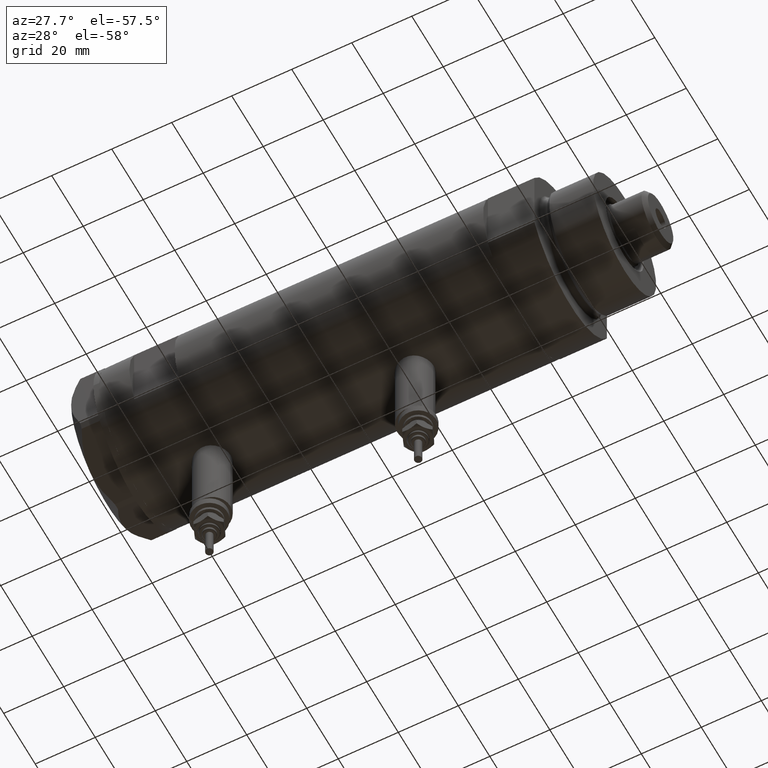
[diagram: clean part render]
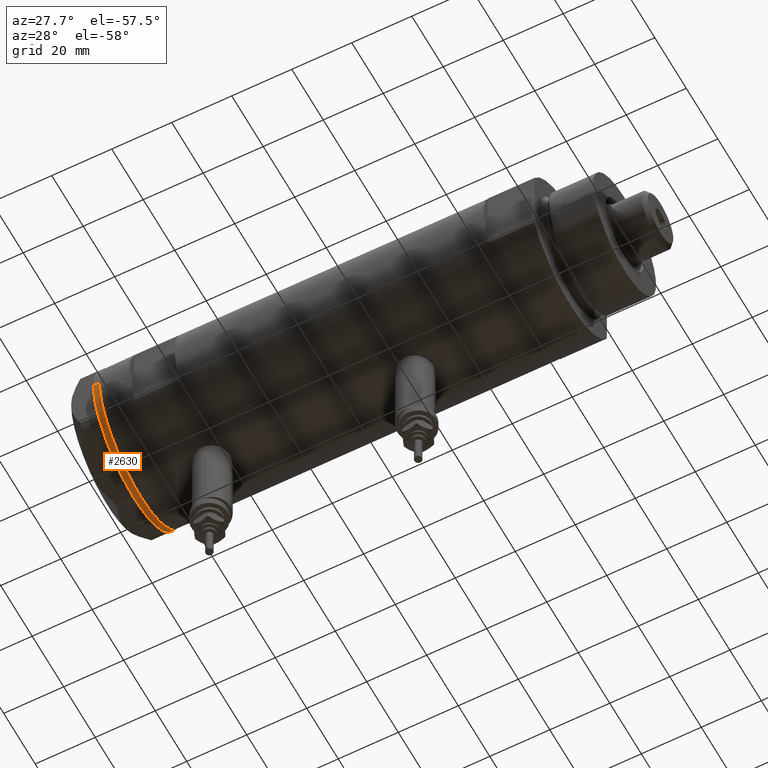
[diagram: same view with one face highlighted and labeled with its STEP entity id]
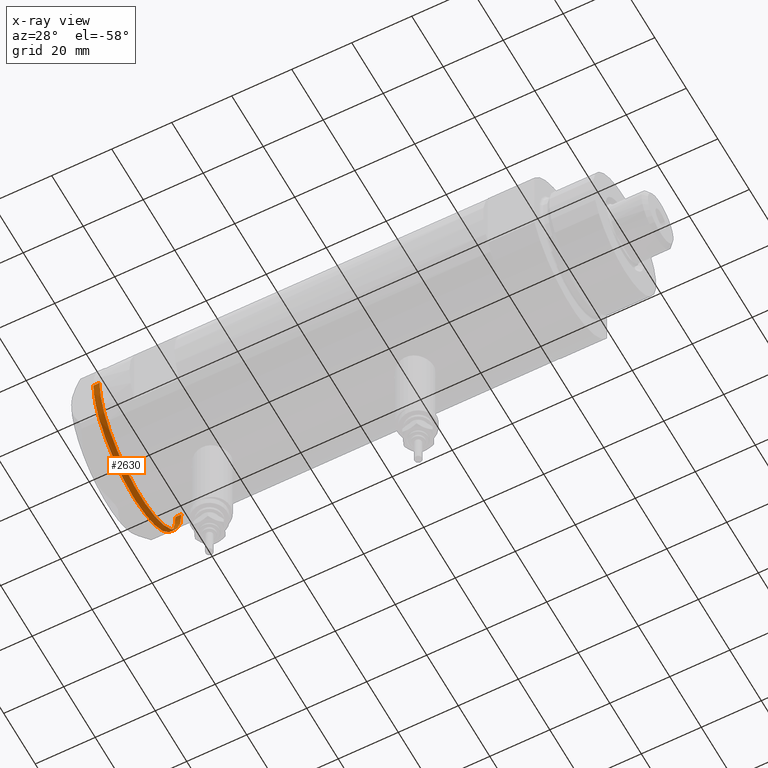
[diagram: x-ray of the same camera — body ghosted, the highlighted face saturated]
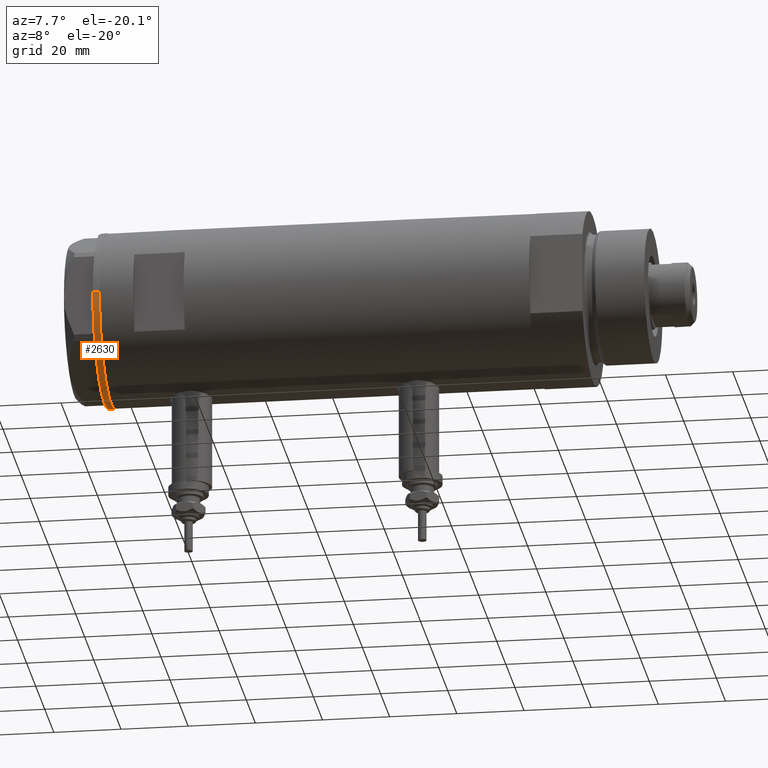
[diagram: same view with one face highlighted and labeled with its STEP entity id]
A machine part, auxiliary view. The second image highlights one B-rep face of the part: STEP entity #2630.
The next image is the same camera in x-ray: the body ghosted, the highlighted face saturated — about 2% of this face is hidden behind the body in this view.
A second angle (auxiliary view) of the same face is appended — the face is thin or edge-on in the first view.
In plain terms, the highlighted cylindrical surface (partial cylindrical patch) has radius 26 mm, axis along (-1, -0, 0).
Its self-contained STEP definition (entity closure, byte-faithful):
#36 = CARTESIAN_POINT ( 'NONE',  ( 0.000000000000000000, 0.000000000000000000, 0.000000000000000000 ) ) ;
#39 = CIRCLE ( 'NONE', #3486, 26.00000000000000355 ) ;
#48 = CARTESIAN_POINT ( 'NONE',  ( 26.00000000000000355, 0.000000000000000000, -2.000000000000000000 ) ) ;
#108 = CARTESIAN_POINT ( 'NONE',  ( 26.00000000000000355, 0.000000000000000000, -2.000000000000000000 ) ) ;
#175 = AXIS2_PLACEMENT_3D ( 'NONE', #2618, #3533, #5469 ) ;
#189 = CIRCLE ( 'NONE', #1226, 26.00000000000000355 ) ;
#268 = CARTESIAN_POINT ( 'NONE',  ( -22.00000000000008171, 13.85640646055089498, 0.000000000000000000 ) ) ;
#282 = CIRCLE ( 'NONE', #175, 26.00000000000000355 ) ;
#363 = DIRECTION ( 'NONE',  ( -1.000000000000000000, 0.000000000000000000, 0.000000000000000000 ) ) ;
#424 = AXIS2_PLACEMENT_3D ( 'NONE', #2401, #2432, #3331 ) ;
#428 = CARTESIAN_POINT ( 'NONE',  ( -22.35837924876937066, 13.27037593168329543, 0.000000000000000000 ) ) ;
#447 = CARTESIAN_POINT ( 'NONE',  ( 0.3132930502238189252, 25.99811238272274139, 0.000000000000000000 ) ) ;
#511 = DIRECTION ( 'NONE',  ( -1.000000000000000000, 0.000000000000000000, 0.000000000000000000 ) ) ;
#567 = CARTESIAN_POINT ( 'NONE',  ( 0.000000000000000000, 0.000000000000000000, 0.000000000000000000 ) ) ;
#591 = CARTESIAN_POINT ( 'NONE',  ( 22.99999999999982592, 12.12435565298247653, 0.000000000000000000 ) ) ;
#654 = CARTESIAN_POINT ( 'NONE',  ( -26.00000000000000355, 3.184081677783118585E-15, -2.000000000000000000 ) ) ;
#700 = EDGE_CURVE ( 'NONE', #2762, #4670, #2290, .T. ) ;
#712 = VERTEX_POINT ( 'NONE', #3726 ) ;
#745 = CIRCLE ( 'NONE', #3688, 26.00000000000000355 ) ;
#765 = VERTEX_POINT ( 'NONE', #6143 ) ;
#808 = EDGE_CURVE ( 'NONE', #4604, #1241, #282, .T. ) ;
#893 = CARTESIAN_POINT ( 'NONE',  ( 0.000000000000000000, 0.000000000000000000, 0.000000000000000000 ) ) ;
#938 = CARTESIAN_POINT ( 'NONE',  ( 0.000000000000000000, 0.000000000000000000, 0.000000000000000000 ) ) ;
#963 = DIRECTION ( 'NONE',  ( 0.000000000000000000, 0.000000000000000000, -1.000000000000000000 ) ) ;
#1070 = AXIS2_PLACEMENT_3D ( 'NONE', #1102, #1947, #3501 ) ;
#1082 = EDGE_CURVE ( 'NONE', #2663, #5357, #4503, .T. ) ;
#1102 = CARTESIAN_POINT ( 'NONE',  ( 0.000000000000000000, 0.000000000000000000, 0.000000000000000000 ) ) ;
#1156 = VERTEX_POINT ( 'NONE', #1581 ) ;
#1226 = AXIS2_PLACEMENT_3D ( 'NONE', #1715, #4054, #6032 ) ;
#1237 = DIRECTION ( 'NONE',  ( 0.000000000000000000, 0.000000000000000000, -1.000000000000000000 ) ) ;
#1241 = VERTEX_POINT ( 'NONE', #3571 ) ;
#1370 = EDGE_CURVE ( 'NONE', #1241, #712, #3203, .T. ) ;
#1387 = CARTESIAN_POINT ( 'NONE',  ( 0.1044411259763403238, 26.00062917530480888, 0.000000000000000000 ) ) ;
#1481 = EDGE_CURVE ( 'NONE', #765, #2762, #3156, .T. ) ;
#1501 = DIRECTION ( 'NONE',  ( -1.000000000000000000, 0.000000000000000000, 0.000000000000000000 ) ) ;
#1572 = AXIS2_PLACEMENT_3D ( 'NONE', #5619, #1237, #5120 ) ;
#1581 = CARTESIAN_POINT ( 'NONE',  ( -26.00000000000000355, 3.184081677783118585E-15, 0.000000000000000000 ) ) ;
#1615 = CARTESIAN_POINT ( 'NONE',  ( -22.56942594318084616, 12.90986591935725158, 0.000000000000000000 ) ) ;
#1633 = ORIENTED_EDGE ( 'NONE', *, *, #5963, .T. ) ;
#1648 = DIRECTION ( 'NONE',  ( -0.000000000000000000, -0.000000000000000000, 1.000000000000000000 ) ) ;
#1665 = EDGE_CURVE ( 'NONE', #2877, #2663, #189, .T. ) ;
#1684 = DIRECTION ( 'NONE',  ( -1.000000000000000000, 0.000000000000000000, 0.000000000000000000 ) ) ;
#1715 = CARTESIAN_POINT ( 'NONE',  ( 0.000000000000000000, 0.000000000000000000, -2.000000000000000000 ) ) ;
#1718 = CARTESIAN_POINT ( 'NONE',  ( -22.99999999999999289, 12.12435565298215856, 0.000000000000000000 ) ) ;
#1790 = CARTESIAN_POINT ( 'NONE',  ( 0.9999999999999297229, 25.98076211353316722, 0.000000000000000000 ) ) ;
#1934 = DIRECTION ( 'NONE',  ( -1.000000000000000000, 0.000000000000000000, 0.000000000000000000 ) ) ;
#1947 = DIRECTION ( 'NONE',  ( 0.000000000000000000, 0.000000000000000000, -1.000000000000000000 ) ) ;
#2078 = CIRCLE ( 'NONE', #3091, 26.00000000000000355 ) ;
#2211 = ORIENTED_EDGE ( 'NONE', *, *, #4255, .T. ) ;
#2232 = CARTESIAN_POINT ( 'NONE',  ( 22.67167229899213510, 12.72773645103923990, 0.000000000000000000 ) ) ;
#2234 = CARTESIAN_POINT ( 'NONE',  ( 0.000000000000000000, 0.000000000000000000, 0.000000000000000000 ) ) ;
#2290 = B_SPLINE_CURVE_WITH_KNOTS ( 'NONE', 3,
 ( #5206, #4232, #5910, #5832 ),
 .UNSPECIFIED., .F., .F.,
 ( 4, 4 ),
 ( 0.000000000000000000, 1.000000000000000000 ),
 .UNSPECIFIED. ) ;
#2345 = EDGE_CURVE ( 'NONE', #3674, #4409, #3980, .T. ) ;
#2355 = CARTESIAN_POINT ( 'NONE',  ( 22.35837924876908289, 13.27037593168378216, 0.000000000000000000 ) ) ;
#2401 = CARTESIAN_POINT ( 'NONE',  ( 0.000000000000000000, 0.000000000000000000, -2.000000000000000000 ) ) ;
#2432 = DIRECTION ( 'NONE',  ( -0.000000000000000000, -0.000000000000000000, 1.000000000000000000 ) ) ;
#2510 = DIRECTION ( 'NONE',  ( 0.000000000000000000, 0.000000000000000000, -1.000000000000000000 ) ) ;
#2521 = VECTOR ( 'NONE', #1648, 1000.000000000000000 ) ;
#2591 = DIRECTION ( 'NONE',  ( -0.000000000000000000, -0.000000000000000000, 1.000000000000000000 ) ) ;
#2618 = CARTESIAN_POINT ( 'NONE',  ( 0.000000000000000000, 0.000000000000000000, 0.000000000000000000 ) ) ;
#2630 = ADVANCED_FACE ( 'NONE', ( #5830 ), #6248, .T. ) ;
#2631 = CARTESIAN_POINT ( 'NONE',  ( 26.00000000000000355, 0.000000000000000000, 0.000000000000000000 ) ) ;
#2663 = VERTEX_POINT ( 'NONE', #48 ) ;
#2671 = AXIS2_PLACEMENT_3D ( 'NONE', #4509, #4952, #1684 ) ;
#2696 = DIRECTION ( 'NONE',  ( 0.000000000000000000, 0.000000000000000000, -1.000000000000000000 ) ) ;
#2700 = B_SPLINE_CURVE_WITH_KNOTS ( 'NONE', 3,
 ( #4588, #1615, #5112, #4626 ),
 .UNSPECIFIED., .F., .F.,
 ( 4, 4 ),
 ( 0.000000000000000000, 1.000000000000000000 ),
 .UNSPECIFIED. ) ;
#2762 = VERTEX_POINT ( 'NONE', #2355 ) ;
#2877 = VERTEX_POINT ( 'NONE', #6325 ) ;
#2913 = CARTESIAN_POINT ( 'NONE',  ( -0.1044411259765276462, 26.00062917530480888, 0.000000000000000000 ) ) ;
#2914 = VERTEX_POINT ( 'NONE', #428 ) ;
#2918 = EDGE_CURVE ( 'NONE', #2914, #6017, #745, .T. ) ;
#2997 = CIRCLE ( 'NONE', #1572, 26.00000000000000355 ) ;
#3091 = AXIS2_PLACEMENT_3D ( 'NONE', #938, #2696, #5763 ) ;
#3156 = CIRCLE ( 'NONE', #5197, 26.00000000000000355 ) ;
#3182 = EDGE_CURVE ( 'NONE', #1156, #3674, #39, .T. ) ;
#3203 = B_SPLINE_CURVE_WITH_KNOTS ( 'NONE', 3,
 ( #4749, #2913, #1387, #447 ),
 .UNSPECIFIED., .F., .F.,
 ( 4, 4 ),
 ( 0.000000000000000000, 1.000000000000000000 ),
 .UNSPECIFIED. ) ;
#3241 = CARTESIAN_POINT ( 'NONE',  ( -22.67167229899207115, 12.72773645103935003, 0.000000000000000000 ) ) ;
#3331 = DIRECTION ( 'NONE',  ( 1.000000000000000000, 0.000000000000000000, 0.000000000000000000 ) ) ;
#3342 = EDGE_CURVE ( 'NONE', #4409, #2914, #2700, .T. ) ;
#3399 = CIRCLE ( 'NONE', #4407, 26.00000000000000355 ) ;
#3486 = AXIS2_PLACEMENT_3D ( 'NONE', #4260, #963, #6234 ) ;
#3501 = DIRECTION ( 'NONE',  ( -1.000000000000000000, 0.000000000000000000, 0.000000000000000000 ) ) ;
#3533 = DIRECTION ( 'NONE',  ( 0.000000000000000000, 0.000000000000000000, -1.000000000000000000 ) ) ;
#3570 = ORIENTED_EDGE ( 'NONE', *, *, #3678, .T. ) ;
#3571 = CARTESIAN_POINT ( 'NONE',  ( -0.3132930502240048320, 25.99811238272273783, 0.000000000000000000 ) ) ;
#3653 = ORIENTED_EDGE ( 'NONE', *, *, #5418, .T. ) ;
#3674 = VERTEX_POINT ( 'NONE', #1718 ) ;
#3678 = EDGE_CURVE ( 'NONE', #712, #5202, #2997, .T. ) ;
#3688 = AXIS2_PLACEMENT_3D ( 'NONE', #893, #5810, #1934 ) ;
#3703 = ORIENTED_EDGE ( 'NONE', *, *, #1370, .T. ) ;
#3726 = CARTESIAN_POINT ( 'NONE',  ( 0.3132930502238189252, 25.99811238272274139, 0.000000000000000000 ) ) ;
#3736 = ORIENTED_EDGE ( 'NONE', *, *, #1082, .F. ) ;
#3801 = CIRCLE ( 'NONE', #1070, 26.00000000000000355 ) ;
#3980 = CIRCLE ( 'NONE', #2671, 26.00000000000000355 ) ;
#4054 = DIRECTION ( 'NONE',  ( 0.000000000000000000, 0.000000000000000000, -1.000000000000000000 ) ) ;
#4120 = ORIENTED_EDGE ( 'NONE', *, *, #5926, .T. ) ;
#4232 = CARTESIAN_POINT ( 'NONE',  ( 22.46498481720465179, 13.09076325594772960, 0.000000000000000000 ) ) ;
#4255 = EDGE_CURVE ( 'NONE', #6017, #4604, #5013, .T. ) ;
#4260 = CARTESIAN_POINT ( 'NONE',  ( 0.000000000000000000, 0.000000000000000000, 0.000000000000000000 ) ) ;
#4364 = ORIENTED_EDGE ( 'NONE', *, *, #1665, .F. ) ;
#4407 = AXIS2_PLACEMENT_3D ( 'NONE', #2234, #5725, #363 ) ;
#4409 = VERTEX_POINT ( 'NONE', #3241 ) ;
#4503 = LINE ( 'NONE', #108, #2521 ) ;
#4509 = CARTESIAN_POINT ( 'NONE',  ( 0.000000000000000000, 0.000000000000000000, 0.000000000000000000 ) ) ;
#4588 = CARTESIAN_POINT ( 'NONE',  ( -22.67167229899207115, 12.72773645103935003, 0.000000000000000000 ) ) ;
#4604 = VERTEX_POINT ( 'NONE', #5895 ) ;
#4626 = CARTESIAN_POINT ( 'NONE',  ( -22.35837924876937066, 13.27037593168329543, 0.000000000000000000 ) ) ;
#4670 = VERTEX_POINT ( 'NONE', #2232 ) ;
#4702 = AXIS2_PLACEMENT_3D ( 'NONE', #567, #2510, #1501 ) ;
#4717 = ORIENTED_EDGE ( 'NONE', *, *, #3182, .T. ) ;
#4749 = CARTESIAN_POINT ( 'NONE',  ( -0.3132930502240048320, 25.99811238272273783, 0.000000000000000000 ) ) ;
#4874 = DIRECTION ( 'NONE',  ( 0.000000000000000000, 0.000000000000000000, -1.000000000000000000 ) ) ;
#4892 = ORIENTED_EDGE ( 'NONE', *, *, #2918, .T. ) ;
#4898 = ORIENTED_EDGE ( 'NONE', *, *, #808, .T. ) ;
#4952 = DIRECTION ( 'NONE',  ( 0.000000000000000000, 0.000000000000000000, -1.000000000000000000 ) ) ;
#5012 = LINE ( 'NONE', #654, #5764 ) ;
#5013 = CIRCLE ( 'NONE', #4702, 26.00000000000000355 ) ;
#5017 = ORIENTED_EDGE ( 'NONE', *, *, #2345, .T. ) ;
#5112 = CARTESIAN_POINT ( 'NONE',  ( -22.46498481720481877, 13.09076325594744006, 0.000000000000000000 ) ) ;
#5120 = DIRECTION ( 'NONE',  ( -1.000000000000000000, 0.000000000000000000, 0.000000000000000000 ) ) ;
#5197 = AXIS2_PLACEMENT_3D ( 'NONE', #36, #4874, #511 ) ;
#5202 = VERTEX_POINT ( 'NONE', #1790 ) ;
#5206 = CARTESIAN_POINT ( 'NONE',  ( 22.35837924876908289, 13.27037593168378216, 0.000000000000000000 ) ) ;
#5325 = VERTEX_POINT ( 'NONE', #591 ) ;
#5357 = VERTEX_POINT ( 'NONE', #2631 ) ;
#5418 = EDGE_CURVE ( 'NONE', #5202, #765, #2078, .T. ) ;
#5439 = ORIENTED_EDGE ( 'NONE', *, *, #1481, .T. ) ;
#5446 = ORIENTED_EDGE ( 'NONE', *, *, #5621, .T. ) ;
#5469 = DIRECTION ( 'NONE',  ( -1.000000000000000000, 0.000000000000000000, 0.000000000000000000 ) ) ;
#5591 = ORIENTED_EDGE ( 'NONE', *, *, #700, .T. ) ;
#5597 = ORIENTED_EDGE ( 'NONE', *, *, #3342, .T. ) ;
#5619 = CARTESIAN_POINT ( 'NONE',  ( 0.000000000000000000, 0.000000000000000000, 0.000000000000000000 ) ) ;
#5621 = EDGE_CURVE ( 'NONE', #4670, #5325, #3801, .T. ) ;
#5725 = DIRECTION ( 'NONE',  ( 0.000000000000000000, 0.000000000000000000, -1.000000000000000000 ) ) ;
#5763 = DIRECTION ( 'NONE',  ( -1.000000000000000000, 0.000000000000000000, 0.000000000000000000 ) ) ;
#5764 = VECTOR ( 'NONE', #2591, 1000.000000000000000 ) ;
#5810 = DIRECTION ( 'NONE',  ( 0.000000000000000000, 0.000000000000000000, -1.000000000000000000 ) ) ;
#5830 = FACE_OUTER_BOUND ( 'NONE', #6195, .T. ) ;
#5832 = CARTESIAN_POINT ( 'NONE',  ( 22.67167229899213510, 12.72773645103923990, 0.000000000000000000 ) ) ;
#5895 = CARTESIAN_POINT ( 'NONE',  ( -0.9999999999999089617, 25.98076211353316367, 0.000000000000000000 ) ) ;
#5910 = CARTESIAN_POINT ( 'NONE',  ( 22.56942594318079642, 12.90986591935734218, 0.000000000000000000 ) ) ;
#5926 = EDGE_CURVE ( 'NONE', #2877, #1156, #5012, .T. ) ;
#5963 = EDGE_CURVE ( 'NONE', #5325, #5357, #3399, .T. ) ;
#6017 = VERTEX_POINT ( 'NONE', #268 ) ;
#6032 = DIRECTION ( 'NONE',  ( -1.000000000000000000, 0.000000000000000000, 0.000000000000000000 ) ) ;
#6143 = CARTESIAN_POINT ( 'NONE',  ( 21.99999999999987210, 13.85640646055121827, 0.000000000000000000 ) ) ;
#6195 = EDGE_LOOP ( 'NONE', ( #4364, #4120, #4717, #5017, #5597, #4892, #2211, #4898, #3703, #3570, #3653, #5439, #5591, #5446, #1633, #3736 ) ) ;
#6234 = DIRECTION ( 'NONE',  ( -1.000000000000000000, 0.000000000000000000, 0.000000000000000000 ) ) ;
#6248 = CYLINDRICAL_SURFACE ( 'NONE', #424, 26.00000000000000355 ) ;
#6325 = CARTESIAN_POINT ( 'NONE',  ( -26.00000000000000355, 3.184081677783118585E-15, -2.000000000000000000 ) ) ;